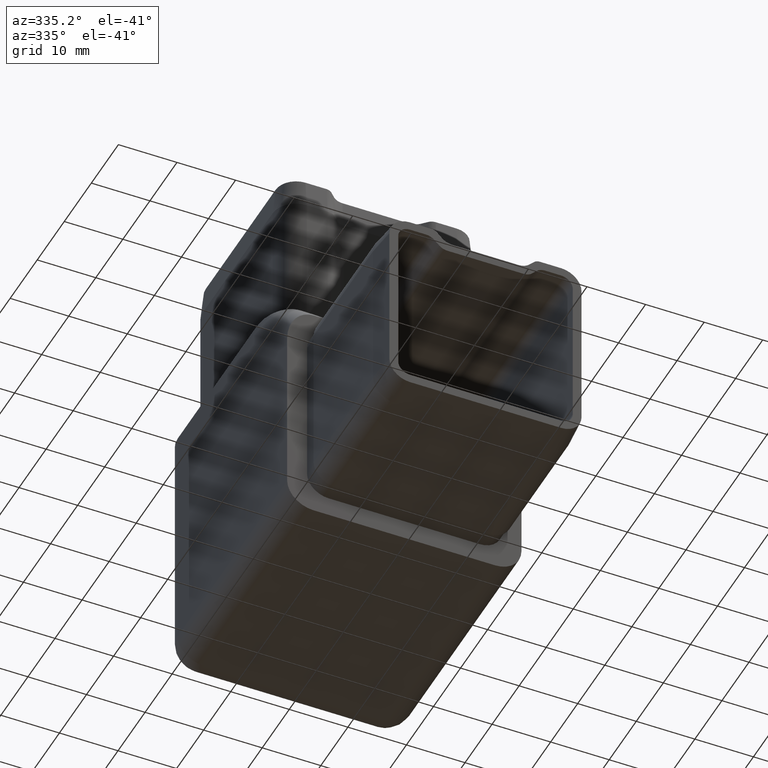
[diagram: clean part render]
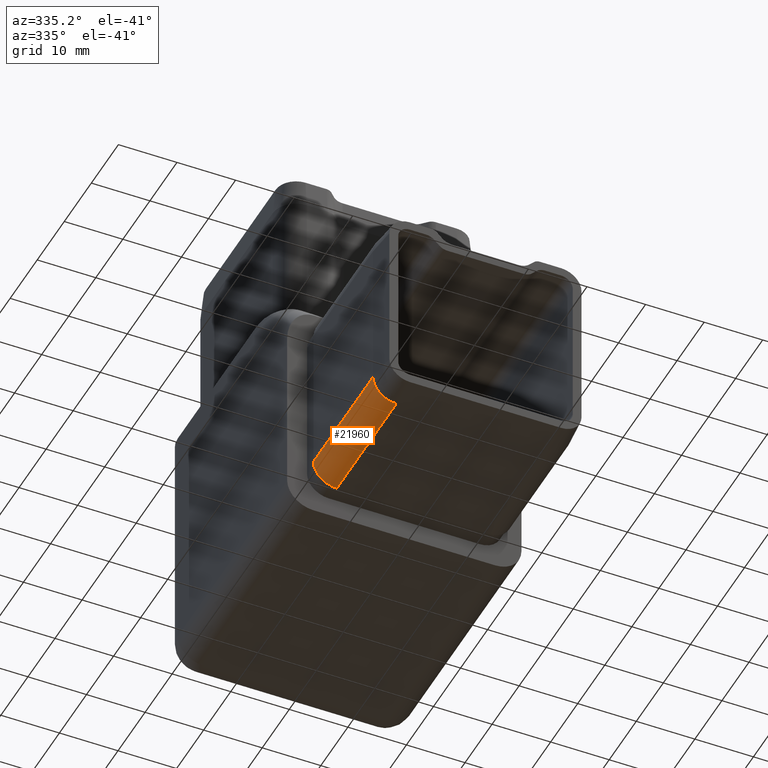
[diagram: same view with one face highlighted and labeled with its STEP entity id]
A machine part, auxiliary view. The second image highlights one B-rep face of the part: STEP entity #21960.
In plain terms, the highlighted cylindrical surface (edge-blend (fillet) strip) has radius 4 mm, axis along (0, 1, 0).
Its self-contained STEP definition (entity closure, byte-faithful):
#1302 = DIRECTION ( 'NONE',  ( 0.0000000000000000000, -1.000000000000000000, -4.440892098500625200E-016 ) ) ;
#1505 = VERTEX_POINT ( 'NONE', #4626 ) ;
#3109 = FACE_OUTER_BOUND ( 'NONE', #19096, .T. ) ;
#3589 = EDGE_CURVE ( 'NONE', #1505, #15920, #5991, .T. ) ;
#4121 = DIRECTION ( 'NONE',  ( 0.0000000000000000000, 1.000000000000000000, 4.440892098500625200E-016 ) ) ;
#4608 = CARTESIAN_POINT ( 'NONE',  ( -16.90000000000001300, -47.50000000000000700, -15.40000000000002200 ) ) ;
#4626 = CARTESIAN_POINT ( 'NONE',  ( -16.90000000000001300, -25.49999999999999300, -15.40000000000001300 ) ) ;
#5039 = DIRECTION ( 'NONE',  ( 0.0000000000000000000, -1.000000000000000000, -4.440892098500625200E-016 ) ) ;
#5924 = EDGE_CURVE ( 'NONE', #8140, #9895, #15775, .T. ) ;
#5938 = ORIENTED_EDGE ( 'NONE', *, *, #5924, .F. ) ;
#5991 = LINE ( 'NONE', #21683, #26675 ) ;
#6086 = ORIENTED_EDGE ( 'NONE', *, *, #3589, .F. ) ;
#7238 = CARTESIAN_POINT ( 'NONE',  ( -12.90000000000000600, -25.49999999999999300, -15.40000000000001500 ) ) ;
#7286 = CARTESIAN_POINT ( 'NONE',  ( -12.90000000000000700, -47.50000000000000700, -19.40000000000002700 ) ) ;
#7308 = ORIENTED_EDGE ( 'NONE', *, *, #12918, .F. ) ;
#8140 = VERTEX_POINT ( 'NONE', #7286 ) ;
#9895 = VERTEX_POINT ( 'NONE', #15825 ) ;
#12918 = EDGE_CURVE ( 'NONE', #15920, #8140, #22178, .T. ) ;
#13554 = ORIENTED_EDGE ( 'NONE', *, *, #14792, .T. ) ;
#14404 = CYLINDRICAL_SURFACE ( 'NONE', #23663, 4.000000000000000000 ) ;
#14504 = CARTESIAN_POINT ( 'NONE',  ( -12.90000000000000600, -52.49999999999999300, -19.40000000000002300 ) ) ;
#14707 = CARTESIAN_POINT ( 'NONE',  ( -12.90000000000000600, -52.49999999999999300, -15.40000000000002500 ) ) ;
#14792 = EDGE_CURVE ( 'NONE', #1505, #9895, #24228, .T. ) ;
#15652 = CARTESIAN_POINT ( 'NONE',  ( -12.90000000000000600, -47.50000000000000700, -15.40000000000002300 ) ) ;
#15775 = LINE ( 'NONE', #14504, #19958 ) ;
#15825 = CARTESIAN_POINT ( 'NONE',  ( -12.90000000000000600, -25.49999999999999300, -19.40000000000001600 ) ) ;
#15920 = VERTEX_POINT ( 'NONE', #4608 ) ;
#19096 = EDGE_LOOP ( 'NONE', ( #5938, #7308, #6086, #13554 ) ) ;
#19769 = AXIS2_PLACEMENT_3D ( 'NONE', #7238, #5039, #21655 ) ;
#19958 = VECTOR ( 'NONE', #4121, 1000.000000000000000 ) ;
#20144 = DIRECTION ( 'NONE',  ( -0.0000000000000000000, -1.000000000000000000, -4.440892098500625200E-016 ) ) ;
#20926 = AXIS2_PLACEMENT_3D ( 'NONE', #15652, #1302, #21771 ) ;
#21655 = DIRECTION ( 'NONE',  ( 0.0000000000000000000, 8.673617379884019700E-016, -1.000000000000000000 ) ) ;
#21683 = CARTESIAN_POINT ( 'NONE',  ( -16.90000000000000600, -52.49999999999999300, -15.40000000000002700 ) ) ;
#21771 = DIRECTION ( 'NONE',  ( 0.0000000000000000000, 0.0000000000000000000, -1.000000000000000000 ) ) ;
#21960 = ADVANCED_FACE ( 'NONE', ( #3109 ), #14404, .T. ) ;
#22178 = CIRCLE ( 'NONE', #20926, 4.000000000000005300 ) ;
#23080 = DIRECTION ( 'NONE',  ( 0.0000000000000000000, 1.000000000000000000, 4.440892098500625200E-016 ) ) ;
#23663 = AXIS2_PLACEMENT_3D ( 'NONE', #14707, #23080, #25147 ) ;
#24228 = CIRCLE ( 'NONE', #19769, 4.000000000000007100 ) ;
#25147 = DIRECTION ( 'NONE',  ( 0.0000000000000000000, 0.0000000000000000000, 1.000000000000000000 ) ) ;
#26675 = VECTOR ( 'NONE', #20144, 1000.000000000000000 ) ;